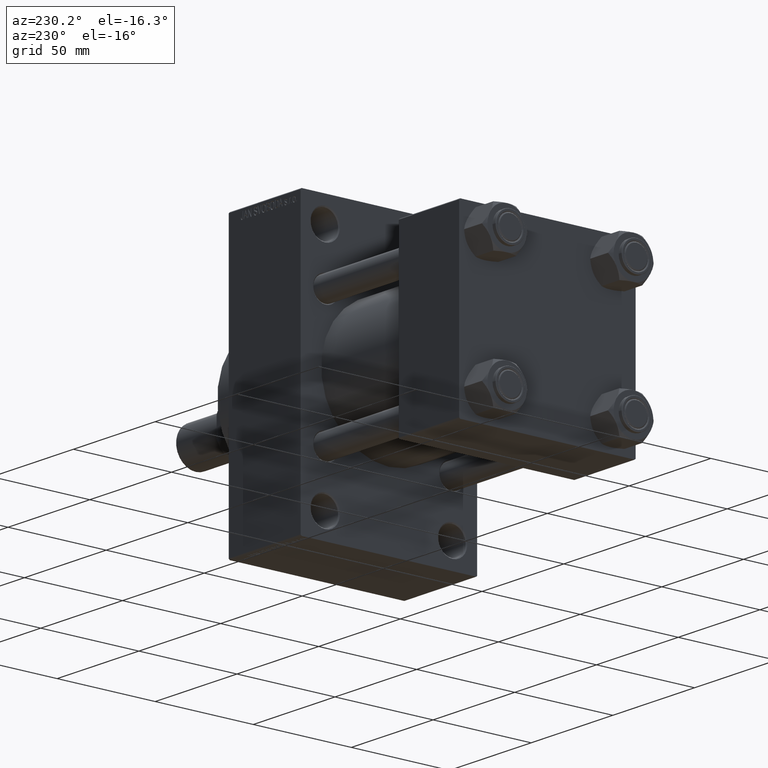
[diagram: clean part render]
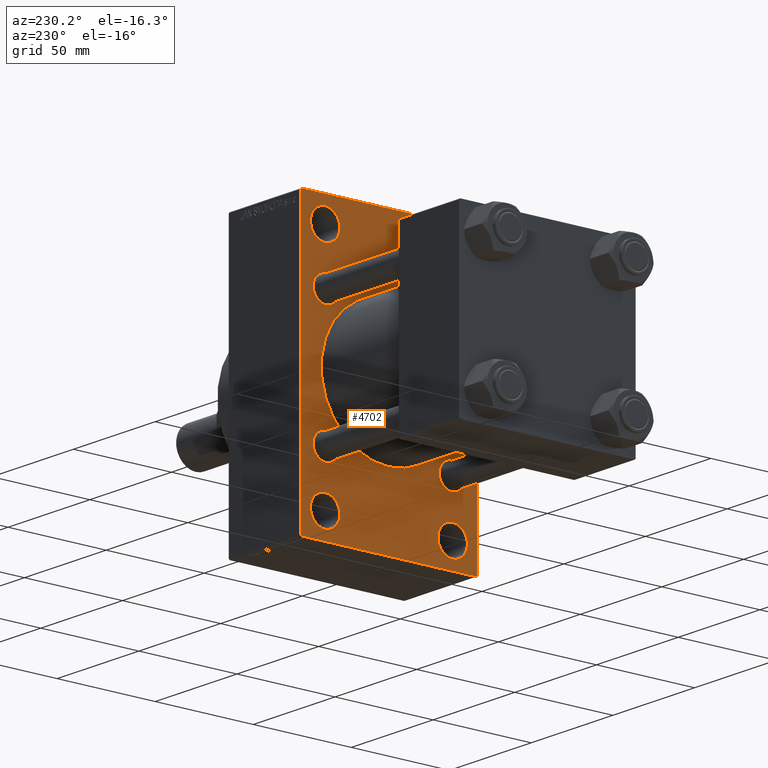
[diagram: same view with one face highlighted and labeled with its STEP entity id]
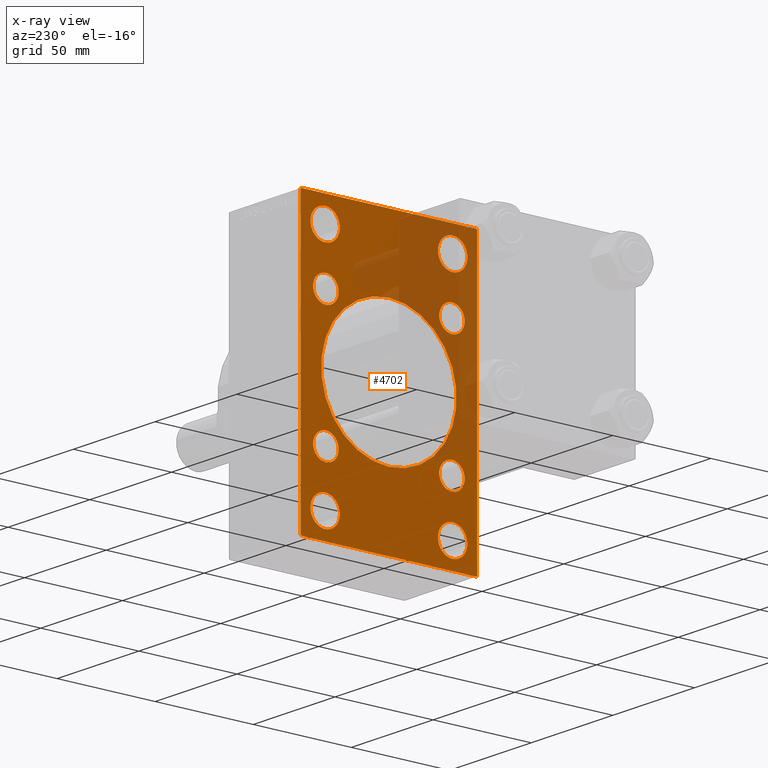
[diagram: x-ray of the same camera — body ghosted, the highlighted face saturated]
A machine part, auxiliary view. The second image highlights one B-rep face of the part: STEP entity #4702.
The next image is the same camera in x-ray: the body ghosted, the highlighted face saturated — about 30% of this face is hidden behind the body in this view.
In plain terms, the highlighted planar face has unit normal (-1, 0, 0).
Its self-contained STEP definition (entity closure, byte-faithful):
#17 = VERTEX_POINT ( 'NONE', #30040 ) ;
#42 = CIRCLE ( 'NONE', #26984, 7.499999999999978684 ) ;
#54 = ORIENTED_EDGE ( 'NONE', *, *, #2007, .T. ) ;
#64 = VECTOR ( 'NONE', #18657, 1000.000000000000000 ) ;
#74 = CARTESIAN_POINT ( 'NONE',  ( 97.00000000000000000, -32.14999999999997726, -25.65000000000000568 ) ) ;
#171 = VECTOR ( 'NONE', #7650, 1000.000000000000000 ) ;
#293 = VERTEX_POINT ( 'NONE', #25890 ) ;
#561 = LINE ( 'NONE', #3693, #64 ) ;
#685 = AXIS2_PLACEMENT_3D ( 'NONE', #2088, #28352, #17286 ) ;
#852 = CARTESIAN_POINT ( 'NONE',  ( 97.00000000000000000, -32.50000000000000000, 58.50000000000000711 ) ) ;
#917 = ORIENTED_EDGE ( 'NONE', *, *, #26936, .T. ) ;
#932 = ORIENTED_EDGE ( 'NONE', *, *, #16522, .T. ) ;
#1113 = ORIENTED_EDGE ( 'NONE', *, *, #22373, .T. ) ;
#1123 = AXIS2_PLACEMENT_3D ( 'NONE', #11177, #32383, #25860 ) ;
#1127 = DIRECTION ( 'NONE',  ( 0.000000000000000000, 0.000000000000000000, 1.000000000000000000 ) ) ;
#1364 = DIRECTION ( 'NONE',  ( 1.000000000000000000, -0.000000000000000000, 0.000000000000000000 ) ) ;
#1456 = AXIS2_PLACEMENT_3D ( 'NONE', #35478, #17182, #39566 ) ;
#1872 = EDGE_CURVE ( 'NONE', #40710, #7942, #17400, .T. ) ;
#1960 = ORIENTED_EDGE ( 'NONE', *, *, #35901, .T. ) ;
#2007 = EDGE_CURVE ( 'NONE', #44525, #293, #14469, .T. ) ;
#2073 = CARTESIAN_POINT ( 'NONE',  ( 97.00000000000000000, 32.50000000000000711, 65.99999999999995737 ) ) ;
#2088 = CARTESIAN_POINT ( 'NONE',  ( 97.00000000000000000, 32.50000000000000711, -58.50000000000000000 ) ) ;
#2339 = CIRCLE ( 'NONE', #16977, 7.499999999999951150 ) ;
#2552 = CARTESIAN_POINT ( 'NONE',  ( 97.00000000000000000, 32.14999999999999147, 25.65000000000000213 ) ) ;
#2583 = DIRECTION ( 'NONE',  ( -0.000000000000000000, -0.7071067811865376918, -0.7071067811865574537 ) ) ;
#2584 = EDGE_CURVE ( 'NONE', #35845, #17, #24471, .T. ) ;
#3025 = CARTESIAN_POINT ( 'NONE',  ( 97.00000000000000000, 32.14999999999999147, -32.15000000000000568 ) ) ;
#3091 = ORIENTED_EDGE ( 'NONE', *, *, #9438, .T. ) ;
#3354 = ORIENTED_EDGE ( 'NONE', *, *, #28635, .T. ) ;
#3471 = CARTESIAN_POINT ( 'NONE',  ( 97.00000000000000000, 45.00000000000002132, 70.50000000000000000 ) ) ;
#3531 = VERTEX_POINT ( 'NONE', #21526 ) ;
#3693 = CARTESIAN_POINT ( 'NONE',  ( 97.00000000000000000, -57.74999999999904787, 57.75000000000144951 ) ) ;
#3744 = CIRCLE ( 'NONE', #685, 7.499999999999978684 ) ;
#3845 = EDGE_LOOP ( 'NONE', ( #3091, #21558 ) ) ;
#4141 = EDGE_CURVE ( 'NONE', #293, #44525, #46875, .T. ) ;
#4231 = EDGE_LOOP ( 'NONE', ( #24703, #932 ) ) ;
#4298 = ORIENTED_EDGE ( 'NONE', *, *, #33793, .T. ) ;
#4331 = CARTESIAN_POINT ( 'NONE',  ( 97.00000000000000000, 32.14999999999999147, 38.65000000000001279 ) ) ;
#4384 = ORIENTED_EDGE ( 'NONE', *, *, #44521, .T. ) ;
#4702 = ADVANCED_FACE ( 'NONE', ( #39798, #42950, #18113, #14034, #39091, #6774, #6064, #21478, #6313, #32574 ), #28249, .T. ) ;
#4734 = VECTOR ( 'NONE', #2583, 999.9999999999998863 ) ;
#4851 = VERTEX_POINT ( 'NONE', #19782 ) ;
#5820 = DIRECTION ( 'NONE',  ( 0.000000000000000000, -0.7071067811865771047, 0.7071067811865180408 ) ) ;
#5939 = EDGE_CURVE ( 'NONE', #39682, #40710, #8440, .T. ) ;
#6064 = FACE_BOUND ( 'NONE', #28461, .T. ) ;
#6313 = FACE_BOUND ( 'NONE', #4231, .T. ) ;
#6414 = DIRECTION ( 'NONE',  ( 1.000000000000000000, -0.000000000000000000, 0.000000000000000000 ) ) ;
#6708 = CARTESIAN_POINT ( 'NONE',  ( 97.00000000000000000, 32.50000000000000711, 58.50000000000000711 ) ) ;
#6774 = FACE_BOUND ( 'NONE', #43971, .T. ) ;
#6985 = CIRCLE ( 'NONE', #10753, 7.499999999999958256 ) ;
#7085 = AXIS2_PLACEMENT_3D ( 'NONE', #8853, #34642, #34161 ) ;
#7284 = VERTEX_POINT ( 'NONE', #12862 ) ;
#7615 = DIRECTION ( 'NONE',  ( 0.000000000000000000, -1.000000000000000000, -1.541976423090495387E-16 ) ) ;
#7650 = DIRECTION ( 'NONE',  ( 0.000000000000000000, -4.886545002751570165E-17, -1.000000000000000000 ) ) ;
#7782 = DIRECTION ( 'NONE',  ( 0.000000000000000000, 0.000000000000000000, -1.000000000000000000 ) ) ;
#7942 = VERTEX_POINT ( 'NONE', #9836 ) ;
#8110 = EDGE_LOOP ( 'NONE', ( #917, #17511 ) ) ;
#8305 = VECTOR ( 'NONE', #5820, 999.9999999999998863 ) ;
#8429 = CIRCLE ( 'NONE', #9196, 6.500000000000005329 ) ;
#8440 = LINE ( 'NONE', #41698, #19210 ) ;
#8441 = CIRCLE ( 'NONE', #23163, 6.500000000000005329 ) ;
#8467 = ORIENTED_EDGE ( 'NONE', *, *, #2584, .T. ) ;
#8853 = CARTESIAN_POINT ( 'NONE',  ( 97.00000000000000000, -2.602085213965210642E-15, 0.000000000000000000 ) ) ;
#8869 = EDGE_CURVE ( 'NONE', #39381, #43325, #16237, .T. ) ;
#9196 = AXIS2_PLACEMENT_3D ( 'NONE', #13500, #42891, #13733 ) ;
#9286 = EDGE_CURVE ( 'NONE', #23876, #7942, #10672, .T. ) ;
#9367 = ORIENTED_EDGE ( 'NONE', *, *, #5939, .T. ) ;
#9438 = EDGE_CURVE ( 'NONE', #28750, #30640, #8441, .T. ) ;
#9836 = CARTESIAN_POINT ( 'NONE',  ( 97.00000000000000000, -44.99999999999997158, -70.50000000000000000 ) ) ;
#9843 = CARTESIAN_POINT ( 'NONE',  ( 97.00000000000000000, 32.14999999999999147, 32.15000000000000568 ) ) ;
#9977 = EDGE_CURVE ( 'NONE', #4851, #30559, #6985, .T. ) ;
#10000 = CARTESIAN_POINT ( 'NONE',  ( 97.00000000000000000, -32.50000000000000000, 65.99999999999995737 ) ) ;
#10103 = CIRCLE ( 'NONE', #35484, 34.50000000000000000 ) ;
#10121 = CARTESIAN_POINT ( 'NONE',  ( 97.00000000000000000, 44.50000000000002132, 71.00000000000000000 ) ) ;
#10532 = LINE ( 'NONE', #13449, #4734 ) ;
#10672 = LINE ( 'NONE', #21741, #15469 ) ;
#10753 = AXIS2_PLACEMENT_3D ( 'NONE', #33667, #1364, #1127 ) ;
#11177 = CARTESIAN_POINT ( 'NONE',  ( 97.00000000000000000, 32.50000000000000711, 58.50000000000000711 ) ) ;
#11274 = EDGE_LOOP ( 'NONE', ( #31787, #4298 ) ) ;
#11288 = CARTESIAN_POINT ( 'NONE',  ( 97.00000000000000000, 45.00000000000002132, 71.00000000000000000 ) ) ;
#11359 = CARTESIAN_POINT ( 'NONE',  ( 97.00000000000000000, -44.49999999999991473, -71.00000000000000000 ) ) ;
#11638 = ORIENTED_EDGE ( 'NONE', *, *, #27077, .T. ) ;
#11663 = EDGE_CURVE ( 'NONE', #32063, #23296, #42, .T. ) ;
#12008 = EDGE_LOOP ( 'NONE', ( #9367, #15375, #47437, #1960, #33720, #42628, #24251, #17439 ) ) ;
#12261 = EDGE_LOOP ( 'NONE', ( #8467, #1113 ) ) ;
#12674 = EDGE_CURVE ( 'NONE', #7284, #26920, #10103, .T. ) ;
#12862 = CARTESIAN_POINT ( 'NONE',  ( 97.00000000000000000, -2.602085213965210642E-15, 34.50000000000000000 ) ) ;
#12936 = AXIS2_PLACEMENT_3D ( 'NONE', #41200, #23365, #37835 ) ;
#12952 = CARTESIAN_POINT ( 'NONE',  ( 97.00000000000000000, 1.622946243093158675E-15, -34.50000000000000000 ) ) ;
#13364 = CARTESIAN_POINT ( 'NONE',  ( 97.00000000000000000, 32.50000000000000711, -58.50000000000000000 ) ) ;
#13449 = CARTESIAN_POINT ( 'NONE',  ( 97.00000000000000000, 57.75000000000061817, -57.74999999999901235 ) ) ;
#13500 = CARTESIAN_POINT ( 'NONE',  ( 97.00000000000000000, 32.14999999999999147, -32.15000000000000568 ) ) ;
#13733 = DIRECTION ( 'NONE',  ( 0.000000000000000000, 0.000000000000000000, 1.000000000000000000 ) ) ;
#14034 = FACE_BOUND ( 'NONE', #28208, .T. ) ;
#14179 = VERTEX_POINT ( 'NONE', #32749 ) ;
#14469 = CIRCLE ( 'NONE', #12936, 6.500000000000005329 ) ;
#14538 = AXIS2_PLACEMENT_3D ( 'NONE', #18231, #22069, #36770 ) ;
#14543 = DIRECTION ( 'NONE',  ( 1.000000000000000000, 0.000000000000000000, 0.000000000000000000 ) ) ;
#14916 = ORIENTED_EDGE ( 'NONE', *, *, #8869, .T. ) ;
#15343 = CIRCLE ( 'NONE', #17655, 6.499999999999999112 ) ;
#15375 = ORIENTED_EDGE ( 'NONE', *, *, #1872, .T. ) ;
#15469 = VECTOR ( 'NONE', #32837, 1000.000000000000000 ) ;
#15560 = DIRECTION ( 'NONE',  ( 0.000000000000000000, 0.000000000000000000, 1.000000000000000000 ) ) ;
#15578 = EDGE_CURVE ( 'NONE', #46106, #36888, #46959, .T. ) ;
#16237 = CIRCLE ( 'NONE', #35449, 6.499999999999999112 ) ;
#16366 = CIRCLE ( 'NONE', #7085, 34.50000000000000000 ) ;
#16442 = DIRECTION ( 'NONE',  ( 1.000000000000000000, -0.000000000000000000, 0.000000000000000000 ) ) ;
#16478 = CARTESIAN_POINT ( 'NONE',  ( 97.00000000000000000, -44.99999999999997158, 70.49999999999998579 ) ) ;
#16489 = ORIENTED_EDGE ( 'NONE', *, *, #4141, .T. ) ;
#16522 = EDGE_CURVE ( 'NONE', #26920, #7284, #16366, .T. ) ;
#16977 = AXIS2_PLACEMENT_3D ( 'NONE', #6708, #39962, #39027 ) ;
#17182 = DIRECTION ( 'NONE',  ( -1.000000000000000000, 0.000000000000000000, -0.000000000000000000 ) ) ;
#17286 = DIRECTION ( 'NONE',  ( 0.000000000000000000, 0.000000000000000000, 1.000000000000000000 ) ) ;
#17400 = LINE ( 'NONE', #31864, #8305 ) ;
#17439 = ORIENTED_EDGE ( 'NONE', *, *, #36567, .T. ) ;
#17511 = ORIENTED_EDGE ( 'NONE', *, *, #11663, .T. ) ;
#17544 = CARTESIAN_POINT ( 'NONE',  ( 97.00000000000000000, -32.14999999999997726, 25.65000000000000213 ) ) ;
#17655 = AXIS2_PLACEMENT_3D ( 'NONE', #9843, #47407, #36559 ) ;
#18113 = FACE_BOUND ( 'NONE', #8110, .T. ) ;
#18231 = CARTESIAN_POINT ( 'NONE',  ( 97.00000000000000000, -32.14999999999997726, -32.15000000000001279 ) ) ;
#18328 = DIRECTION ( 'NONE',  ( 0.000000000000000000, 0.000000000000000000, 1.000000000000000000 ) ) ;
#18657 = DIRECTION ( 'NONE',  ( -0.000000000000000000, 0.7071067811865622277, 0.7071067811865328068 ) ) ;
#18777 = CARTESIAN_POINT ( 'NONE',  ( 97.00000000000000000, -32.14999999999997726, 38.65000000000002700 ) ) ;
#19094 = CARTESIAN_POINT ( 'NONE',  ( 97.00000000000000000, -32.14999999999997726, 32.15000000000001279 ) ) ;
#19168 = DIRECTION ( 'NONE',  ( 0.000000000000000000, 0.000000000000000000, 1.000000000000000000 ) ) ;
#19210 = VECTOR ( 'NONE', #34229, 1000.000000000000000 ) ;
#19225 = CARTESIAN_POINT ( 'NONE',  ( 97.00000000000000000, 44.50000000000001421, -70.99999999999998579 ) ) ;
#19570 = DIRECTION ( 'NONE',  ( 0.000000000000000000, 0.000000000000000000, 1.000000000000000000 ) ) ;
#19782 = CARTESIAN_POINT ( 'NONE',  ( 97.00000000000000000, -32.50000000000000000, -51.00000000000002842 ) ) ;
#20153 = VERTEX_POINT ( 'NONE', #2073 ) ;
#20813 = CARTESIAN_POINT ( 'NONE',  ( 97.00000000000000000, 32.50000000000000711, -65.99999999999997158 ) ) ;
#21367 = CARTESIAN_POINT ( 'NONE',  ( 97.00000000000000000, 32.50000000000000711, -51.00000000000001421 ) ) ;
#21478 = FACE_BOUND ( 'NONE', #47316, .T. ) ;
#21526 = CARTESIAN_POINT ( 'NONE',  ( 97.00000000000000000, 32.14999999999999147, -38.65000000000001279 ) ) ;
#21558 = ORIENTED_EDGE ( 'NONE', *, *, #36398, .T. ) ;
#21602 = CARTESIAN_POINT ( 'NONE',  ( 97.00000000000000000, 45.00000000000002132, 71.00000000000000000 ) ) ;
#21741 = CARTESIAN_POINT ( 'NONE',  ( 97.00000000000000000, -44.99999999999997158, 70.99999999999998579 ) ) ;
#21757 = CARTESIAN_POINT ( 'NONE',  ( 97.00000000000000000, 57.75000000000000000, 57.75000000000000000 ) ) ;
#21978 = ORIENTED_EDGE ( 'NONE', *, *, #31412, .T. ) ;
#22069 = DIRECTION ( 'NONE',  ( 1.000000000000000000, -0.000000000000000000, 0.000000000000000000 ) ) ;
#22373 = EDGE_CURVE ( 'NONE', #17, #35845, #40525, .T. ) ;
#23163 = AXIS2_PLACEMENT_3D ( 'NONE', #19094, #16442, #19570 ) ;
#23296 = VERTEX_POINT ( 'NONE', #21367 ) ;
#23365 = DIRECTION ( 'NONE',  ( 1.000000000000000000, -0.000000000000000000, 0.000000000000000000 ) ) ;
#23435 = CARTESIAN_POINT ( 'NONE',  ( 97.00000000000000000, 32.14999999999999147, -25.64999999999999858 ) ) ;
#23876 = VERTEX_POINT ( 'NONE', #16478 ) ;
#24251 = ORIENTED_EDGE ( 'NONE', *, *, #15578, .T. ) ;
#24471 = CIRCLE ( 'NONE', #42956, 7.499999999999951150 ) ;
#24703 = ORIENTED_EDGE ( 'NONE', *, *, #12674, .T. ) ;
#24894 = DIRECTION ( 'NONE',  ( 0.000000000000000000, 0.000000000000000000, 1.000000000000000000 ) ) ;
#25860 = DIRECTION ( 'NONE',  ( 0.000000000000000000, 0.000000000000000000, 1.000000000000000000 ) ) ;
#25890 = CARTESIAN_POINT ( 'NONE',  ( 97.00000000000000000, -32.14999999999997726, -38.65000000000001990 ) ) ;
#26020 = CARTESIAN_POINT ( 'NONE',  ( 97.00000000000000000, -32.50000000000000000, 58.50000000000000711 ) ) ;
#26920 = VERTEX_POINT ( 'NONE', #12952 ) ;
#26936 = EDGE_CURVE ( 'NONE', #23296, #32063, #3744, .T. ) ;
#26938 = AXIS2_PLACEMENT_3D ( 'NONE', #37479, #40140, #19168 ) ;
#26968 = DIRECTION ( 'NONE',  ( 1.000000000000000000, -0.000000000000000000, 0.000000000000000000 ) ) ;
#26984 = AXIS2_PLACEMENT_3D ( 'NONE', #13364, #43222, #24894 ) ;
#27077 = EDGE_CURVE ( 'NONE', #3531, #27507, #29933, .T. ) ;
#27188 = CARTESIAN_POINT ( 'NONE',  ( 97.00000000000000000, -32.14999999999997726, 32.15000000000001279 ) ) ;
#27199 = CARTESIAN_POINT ( 'NONE',  ( 97.00000000000000000, -32.50000000000000000, -65.99999999999994316 ) ) ;
#27507 = VERTEX_POINT ( 'NONE', #23435 ) ;
#28077 = VECTOR ( 'NONE', #36465, 1000.000000000000114 ) ;
#28208 = EDGE_LOOP ( 'NONE', ( #32931, #4384 ) ) ;
#28249 = PLANE ( 'NONE',  #1456 ) ;
#28352 = DIRECTION ( 'NONE',  ( 1.000000000000000000, -0.000000000000000000, 0.000000000000000000 ) ) ;
#28461 = EDGE_LOOP ( 'NONE', ( #3354, #11638 ) ) ;
#28635 = EDGE_CURVE ( 'NONE', #27507, #3531, #8429, .T. ) ;
#28655 = VERTEX_POINT ( 'NONE', #10121 ) ;
#28750 = VERTEX_POINT ( 'NONE', #18777 ) ;
#28817 = CIRCLE ( 'NONE', #1123, 7.499999999999951150 ) ;
#29511 = EDGE_CURVE ( 'NONE', #28655, #14179, #36307, .T. ) ;
#29933 = CIRCLE ( 'NONE', #39156, 6.500000000000005329 ) ;
#30036 = CIRCLE ( 'NONE', #26938, 7.499999999999958256 ) ;
#30040 = CARTESIAN_POINT ( 'NONE',  ( 97.00000000000000000, -32.50000000000000000, 51.00000000000005684 ) ) ;
#30559 = VERTEX_POINT ( 'NONE', #27199 ) ;
#30640 = VERTEX_POINT ( 'NONE', #17544 ) ;
#31049 = DIRECTION ( 'NONE',  ( 1.000000000000000000, -0.000000000000000000, 0.000000000000000000 ) ) ;
#31412 = EDGE_CURVE ( 'NONE', #43325, #39381, #15343, .T. ) ;
#31787 = ORIENTED_EDGE ( 'NONE', *, *, #9977, .T. ) ;
#31864 = CARTESIAN_POINT ( 'NONE',  ( 97.00000000000000000, -57.74999999999811706, -57.75000000000292744 ) ) ;
#32063 = VERTEX_POINT ( 'NONE', #20813 ) ;
#32383 = DIRECTION ( 'NONE',  ( 1.000000000000000000, -0.000000000000000000, 0.000000000000000000 ) ) ;
#32574 = FACE_OUTER_BOUND ( 'NONE', #12008, .T. ) ;
#32676 = DIRECTION ( 'NONE',  ( 0.000000000000000000, 0.000000000000000000, 1.000000000000000000 ) ) ;
#32749 = CARTESIAN_POINT ( 'NONE',  ( 97.00000000000000000, -44.49999999999992184, 70.99999999999998579 ) ) ;
#32825 = AXIS2_PLACEMENT_3D ( 'NONE', #26020, #44580, #18328 ) ;
#32837 = DIRECTION ( 'NONE',  ( 0.000000000000000000, 0.000000000000000000, -1.000000000000000000 ) ) ;
#32931 = ORIENTED_EDGE ( 'NONE', *, *, #35206, .T. ) ;
#33342 = LINE ( 'NONE', #21757, #28077 ) ;
#33667 = CARTESIAN_POINT ( 'NONE',  ( 97.00000000000000000, -32.50000000000000000, -58.49999999999999289 ) ) ;
#33720 = ORIENTED_EDGE ( 'NONE', *, *, #29511, .F. ) ;
#33793 = EDGE_CURVE ( 'NONE', #30559, #4851, #30036, .T. ) ;
#34161 = DIRECTION ( 'NONE',  ( 0.000000000000000000, 0.000000000000000000, -1.000000000000000000 ) ) ;
#34229 = DIRECTION ( 'NONE',  ( 0.000000000000000000, -1.000000000000000000, -1.541976423090495633E-16 ) ) ;
#34432 = DIRECTION ( 'NONE',  ( 0.000000000000000000, 0.000000000000000000, 1.000000000000000000 ) ) ;
#34642 = DIRECTION ( 'NONE',  ( 1.000000000000000000, 0.000000000000000000, 0.000000000000000000 ) ) ;
#35206 = EDGE_CURVE ( 'NONE', #20153, #38355, #2339, .T. ) ;
#35449 = AXIS2_PLACEMENT_3D ( 'NONE', #40952, #26968, #34432 ) ;
#35478 = CARTESIAN_POINT ( 'NONE',  ( 97.00000000000000000, 0.000000000000000000, 0.000000000000000000 ) ) ;
#35484 = AXIS2_PLACEMENT_3D ( 'NONE', #47317, #14543, #7782 ) ;
#35845 = VERTEX_POINT ( 'NONE', #10000 ) ;
#35901 = EDGE_CURVE ( 'NONE', #23876, #14179, #561, .T. ) ;
#36307 = LINE ( 'NONE', #21602, #41526 ) ;
#36398 = EDGE_CURVE ( 'NONE', #30640, #28750, #37845, .T. ) ;
#36465 = DIRECTION ( 'NONE',  ( 0.000000000000000000, 0.7071067811865474617, -0.7071067811865474617 ) ) ;
#36559 = DIRECTION ( 'NONE',  ( 0.000000000000000000, 0.000000000000000000, 1.000000000000000000 ) ) ;
#36567 = EDGE_CURVE ( 'NONE', #36888, #39682, #10532, .T. ) ;
#36770 = DIRECTION ( 'NONE',  ( 0.000000000000000000, 0.000000000000000000, 1.000000000000000000 ) ) ;
#36888 = VERTEX_POINT ( 'NONE', #39158 ) ;
#37479 = CARTESIAN_POINT ( 'NONE',  ( 97.00000000000000000, -32.50000000000000000, -58.49999999999999289 ) ) ;
#37835 = DIRECTION ( 'NONE',  ( 0.000000000000000000, 0.000000000000000000, 1.000000000000000000 ) ) ;
#37845 = CIRCLE ( 'NONE', #40896, 6.500000000000005329 ) ;
#38355 = VERTEX_POINT ( 'NONE', #39771 ) ;
#39027 = DIRECTION ( 'NONE',  ( 0.000000000000000000, 0.000000000000000000, 1.000000000000000000 ) ) ;
#39091 = FACE_BOUND ( 'NONE', #3845, .T. ) ;
#39156 = AXIS2_PLACEMENT_3D ( 'NONE', #3025, #6414, #32676 ) ;
#39158 = CARTESIAN_POINT ( 'NONE',  ( 97.00000000000000000, 45.00000000000001421, -70.49999999999997158 ) ) ;
#39381 = VERTEX_POINT ( 'NONE', #4331 ) ;
#39566 = DIRECTION ( 'NONE',  ( -0.000000000000000000, 0.000000000000000000, 1.000000000000000000 ) ) ;
#39682 = VERTEX_POINT ( 'NONE', #19225 ) ;
#39771 = CARTESIAN_POINT ( 'NONE',  ( 97.00000000000000000, 32.50000000000000711, 51.00000000000005684 ) ) ;
#39798 = FACE_BOUND ( 'NONE', #12261, .T. ) ;
#39962 = DIRECTION ( 'NONE',  ( 1.000000000000000000, -0.000000000000000000, 0.000000000000000000 ) ) ;
#40140 = DIRECTION ( 'NONE',  ( 1.000000000000000000, -0.000000000000000000, 0.000000000000000000 ) ) ;
#40525 = CIRCLE ( 'NONE', #32825, 7.499999999999951150 ) ;
#40710 = VERTEX_POINT ( 'NONE', #11359 ) ;
#40896 = AXIS2_PLACEMENT_3D ( 'NONE', #27188, #31049, #41646 ) ;
#40952 = CARTESIAN_POINT ( 'NONE',  ( 97.00000000000000000, 32.14999999999999147, 32.15000000000000568 ) ) ;
#41200 = CARTESIAN_POINT ( 'NONE',  ( 97.00000000000000000, -32.14999999999997726, -32.15000000000001279 ) ) ;
#41330 = DIRECTION ( 'NONE',  ( 1.000000000000000000, -0.000000000000000000, 0.000000000000000000 ) ) ;
#41526 = VECTOR ( 'NONE', #7615, 1000.000000000000000 ) ;
#41646 = DIRECTION ( 'NONE',  ( 0.000000000000000000, 0.000000000000000000, 1.000000000000000000 ) ) ;
#41698 = CARTESIAN_POINT ( 'NONE',  ( 97.00000000000000000, 45.00000000000001421, -70.99999999999998579 ) ) ;
#42628 = ORIENTED_EDGE ( 'NONE', *, *, #44564, .T. ) ;
#42891 = DIRECTION ( 'NONE',  ( 1.000000000000000000, -0.000000000000000000, 0.000000000000000000 ) ) ;
#42950 = FACE_BOUND ( 'NONE', #11274, .T. ) ;
#42956 = AXIS2_PLACEMENT_3D ( 'NONE', #852, #41330, #15560 ) ;
#43222 = DIRECTION ( 'NONE',  ( 1.000000000000000000, -0.000000000000000000, 0.000000000000000000 ) ) ;
#43325 = VERTEX_POINT ( 'NONE', #2552 ) ;
#43971 = EDGE_LOOP ( 'NONE', ( #14916, #21978 ) ) ;
#44521 = EDGE_CURVE ( 'NONE', #38355, #20153, #28817, .T. ) ;
#44525 = VERTEX_POINT ( 'NONE', #74 ) ;
#44564 = EDGE_CURVE ( 'NONE', #28655, #46106, #33342, .T. ) ;
#44580 = DIRECTION ( 'NONE',  ( 1.000000000000000000, -0.000000000000000000, 0.000000000000000000 ) ) ;
#46106 = VERTEX_POINT ( 'NONE', #3471 ) ;
#46875 = CIRCLE ( 'NONE', #14538, 6.500000000000005329 ) ;
#46959 = LINE ( 'NONE', #11288, #171 ) ;
#47316 = EDGE_LOOP ( 'NONE', ( #54, #16489 ) ) ;
#47317 = CARTESIAN_POINT ( 'NONE',  ( 97.00000000000000000, -2.602085213965210642E-15, 0.000000000000000000 ) ) ;
#47407 = DIRECTION ( 'NONE',  ( 1.000000000000000000, -0.000000000000000000, 0.000000000000000000 ) ) ;
#47437 = ORIENTED_EDGE ( 'NONE', *, *, #9286, .F. ) ;